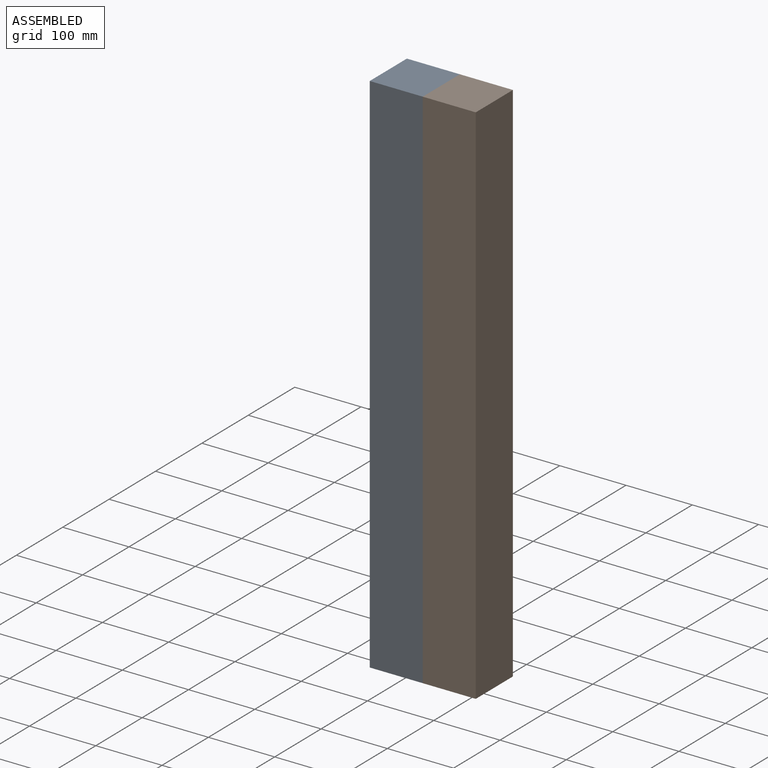
[diagram: assembled view]
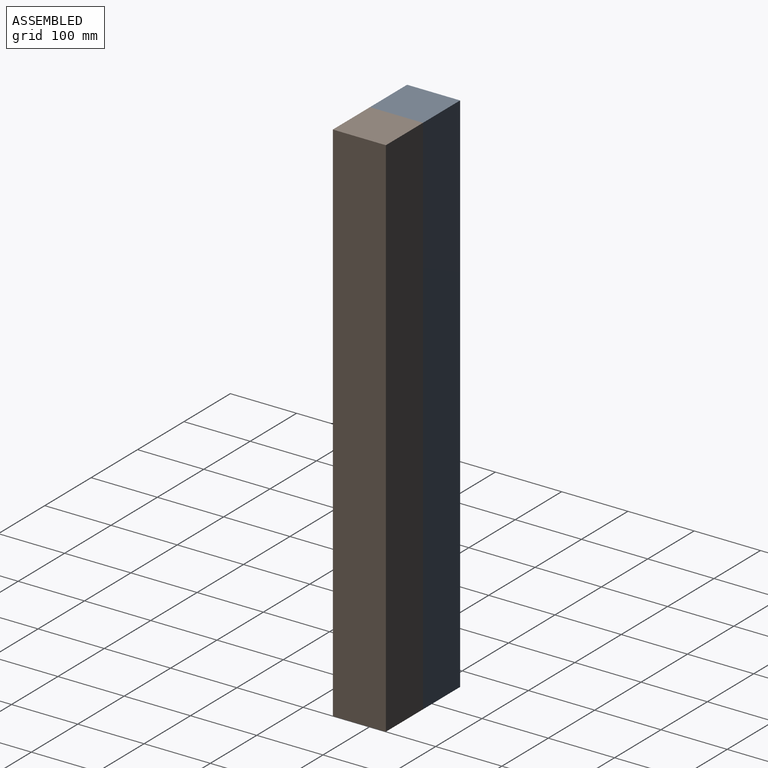
[diagram: assembled view, second angle]
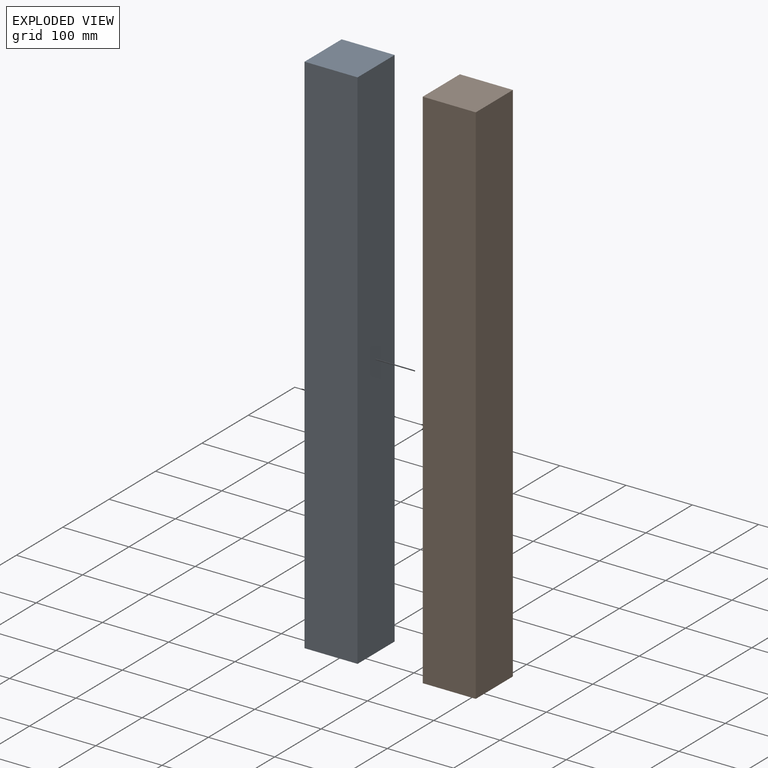
[diagram: exploded view]
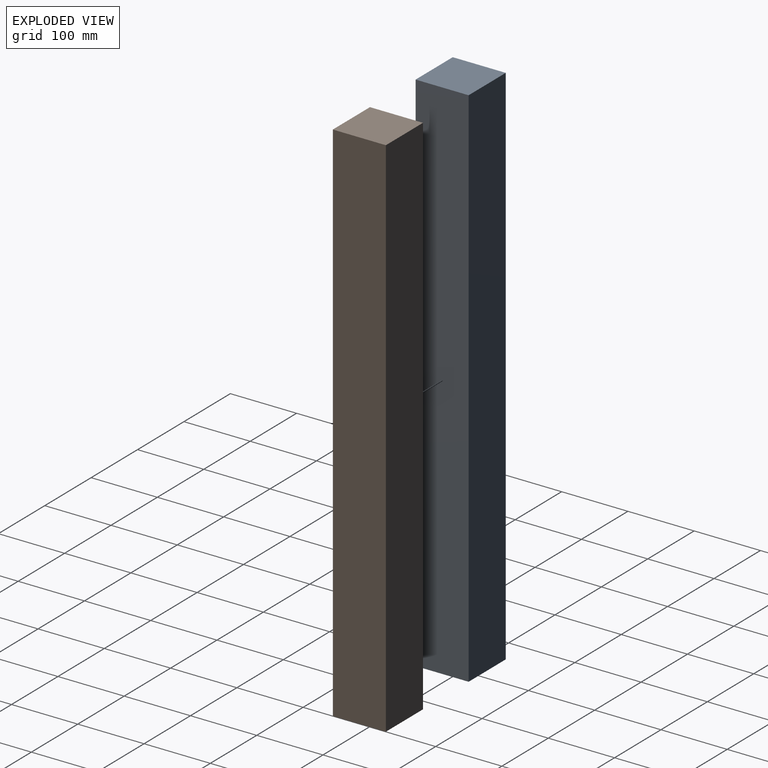
[diagram: exploded view, second angle]
ASSEMBLY  parts=2 mates=3
PART A: 6 faces, bbox 80x80x800 mm
  f0: plane 800x80mm, normal (-1,0,0), area 64000mm2, adj f1,f3,f4,f5
  f1: plane 800x80mm, normal (0,-1,0), area 64000mm2, adj f0,f2,f4,f5
  f2: plane 800x80mm, normal (1,0,0), area 64000mm2, adj f1,f3,f4,f5
  f3: plane 800x80mm, normal (0,1,0), area 64000mm2, adj f0,f2,f4,f5
  f4: plane 80x80mm, normal (0,0,1), area 6400mm2, adj f0,f1,f2,f3
  f5: plane 80x80mm, normal (0,0,-1), area 6400mm2, adj f0,f1,f2,f3
PART B: same geometry as A
PLACE A t=(-298.54,-0.01,-11.72)mm
PLACE B t=(-218.54,-0.01,-11.72)mm
MATE planar A.f1 <-> B.f1  axis (0,-1,0) through (-298.54,-40.01,-11.72)mm
MATE planar B.f0 <-> A.f2  axis (-1,0,0) through (-258.54,-0.01,-11.72)mm
MATE planar A.f4 <-> B.f4  axis (0,0,1) through (-298.54,-0.01,388.28)mm
